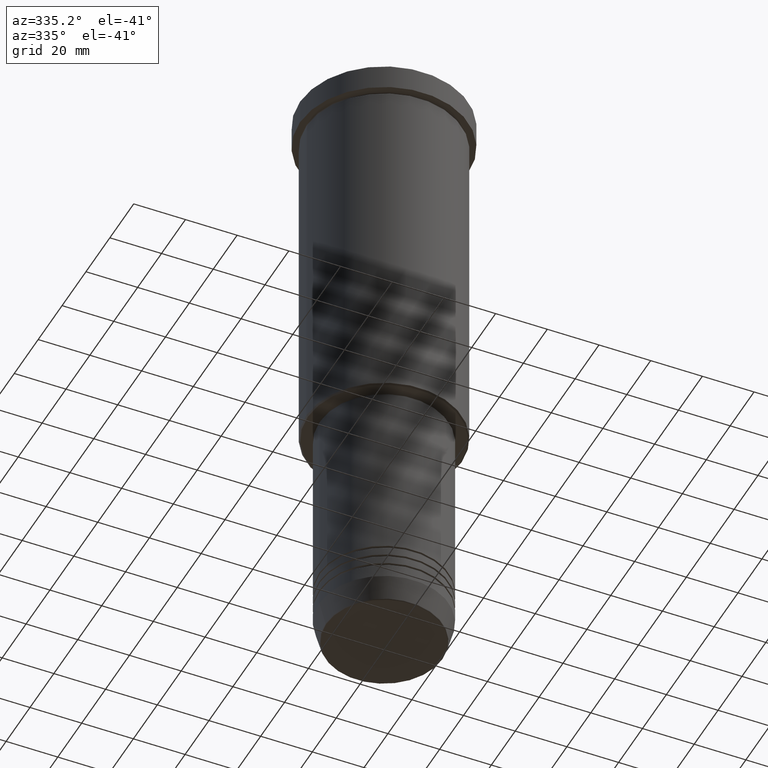
[diagram: clean part render]
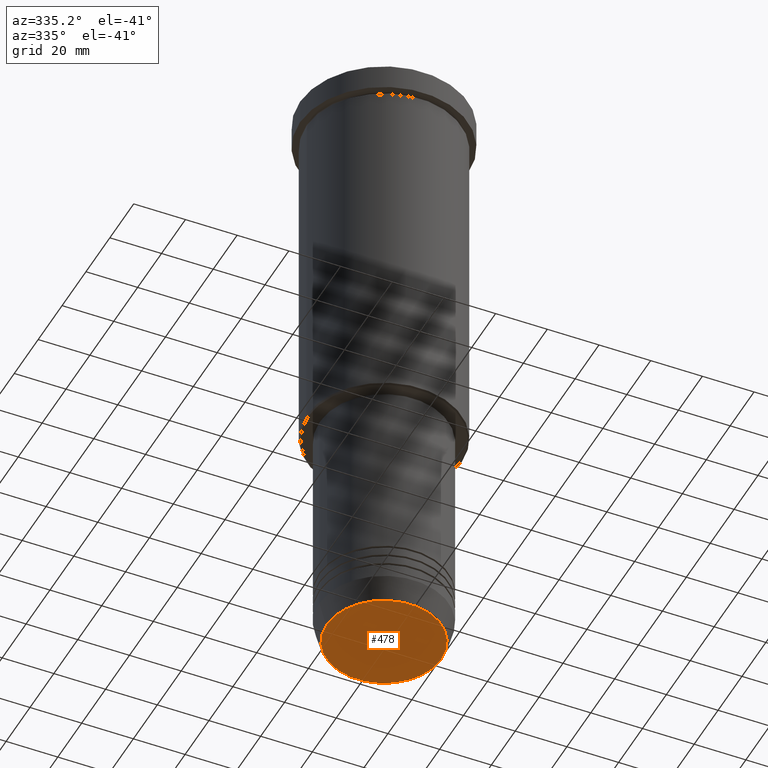
[diagram: same view with one face highlighted and labeled with its STEP entity id]
A machine part, auxiliary view. The second image highlights one B-rep face of the part: STEP entity #478.
In plain terms, the highlighted planar face has unit normal (0, -0, 1).
Its self-contained STEP definition (entity closure, byte-faithful):
#1 = CARTESIAN_POINT ( 'NONE',  ( 0.000000000000000000, 0.000000000000000000, -240.0000000000000000 ) ) ;
#16 = EDGE_LOOP ( 'NONE', ( #597, #585 ) ) ;
#52 = EDGE_CURVE ( 'NONE', #1143, #577, #1095, .T. ) ;
#73 = DIRECTION ( 'NONE',  ( 1.000000000000000000, 0.000000000000000000, 0.000000000000000000 ) ) ;
#82 = CARTESIAN_POINT ( 'NONE',  ( 0.000000000000000000, 0.000000000000000000, -240.0000000000000000 ) ) ;
#176 = AXIS2_PLACEMENT_3D ( 'NONE', #82, #1063, #73 ) ;
#288 = CIRCLE ( 'NONE', #176, 22.20479377413041533 ) ;
#430 = DIRECTION ( 'NONE',  ( 1.000000000000000000, 0.000000000000000000, 0.000000000000000000 ) ) ;
#435 = PLANE ( 'NONE',  #948 ) ;
#478 = ADVANCED_FACE ( 'NONE', ( #1166 ), #435, .F. ) ;
#577 = VERTEX_POINT ( 'NONE', #935 ) ;
#585 = ORIENTED_EDGE ( 'NONE', *, *, #955, .T. ) ;
#597 = ORIENTED_EDGE ( 'NONE', *, *, #52, .T. ) ;
#599 = AXIS2_PLACEMENT_3D ( 'NONE', #1, #1167, #1003 ) ;
#828 = DIRECTION ( 'NONE',  ( 0.000000000000000000, -0.000000000000000000, 1.000000000000000000 ) ) ;
#935 = CARTESIAN_POINT ( 'NONE',  ( -22.20479377413041533, 2.748875911406055577E-15, -240.0000000000000000 ) ) ;
#948 = AXIS2_PLACEMENT_3D ( 'NONE', #1090, #828, #430 ) ;
#955 = EDGE_CURVE ( 'NONE', #577, #1143, #288, .T. ) ;
#1003 = DIRECTION ( 'NONE',  ( 1.000000000000000000, 0.000000000000000000, 0.000000000000000000 ) ) ;
#1063 = DIRECTION ( 'NONE',  ( 0.000000000000000000, 0.000000000000000000, -1.000000000000000000 ) ) ;
#1090 = CARTESIAN_POINT ( 'NONE',  ( 0.000000000000000000, 0.000000000000000000, -240.0000000000000000 ) ) ;
#1095 = CIRCLE ( 'NONE', #599, 22.20479377413041533 ) ;
#1136 = CARTESIAN_POINT ( 'NONE',  ( 22.20479377413041533, 0.000000000000000000, -240.0000000000000000 ) ) ;
#1143 = VERTEX_POINT ( 'NONE', #1136 ) ;
#1166 = FACE_OUTER_BOUND ( 'NONE', #16, .T. ) ;
#1167 = DIRECTION ( 'NONE',  ( 0.000000000000000000, 0.000000000000000000, -1.000000000000000000 ) ) ;